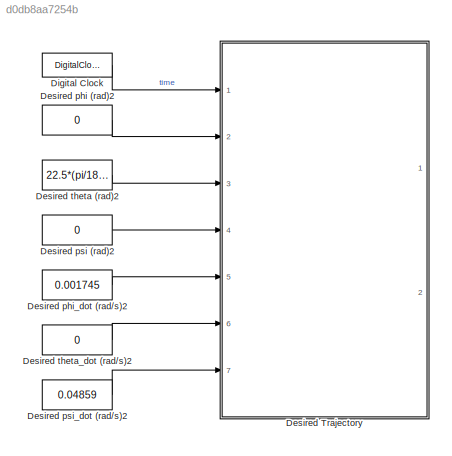
MODEL slx_d0db8aa7254b
KIND model
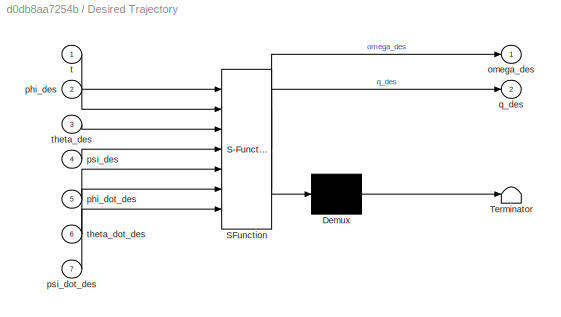
BLOCK [SubSystem] Desired Trajectory
  ErrorFcn = Stateflow.Translate.translate
  FunctionWithSeparateData = off
  MaskHideContents = off
  MinAlgLoopOccurrences = off
  Opaque = off
  PermitHierarchicalResolution = ExplicitOnly
  Ports = [7, 2]
  PropExecContextOutsideSubsystem = off
  RTWSystemCode = Auto
  RequestExecContextInheritance = off
  SFBlockType = MATLAB Function
  TreatAsAtomicUnit = on
BLOCK [Demux] Desired Trajectory/ Demux 
  Outputs = 1
  Ports = [1, 1]
BLOCK [S-Function] Desired Trajectory/ SFunction 
  EnableBusSupport = on
  FunctionName = sf_sfun
  PortCounts = [7 3]
  Ports = [7, 3]
  Tag = Stateflow S-Function trajectory_block 1
BLOCK [Terminator] Desired Trajectory/ Terminator 
BLOCK [Outport] Desired Trajectory/omega_des
  IconDisplay = Port number
BLOCK [Inport] Desired Trajectory/phi_des
  IconDisplay = Port number
  Port = 2
BLOCK [Inport] Desired Trajectory/phi_dot_des
  IconDisplay = Port number
  Port = 5
BLOCK [Inport] Desired Trajectory/psi_des
  IconDisplay = Port number
  Port = 4
BLOCK [Inport] Desired Trajectory/psi_dot_des
  IconDisplay = Port number
  Port = 7
BLOCK [Outport] Desired Trajectory/q_des
  IconDisplay = Port number
  Port = 2
BLOCK [Inport] Desired Trajectory/t
  IconDisplay = Port number
BLOCK [Inport] Desired Trajectory/theta_des
  IconDisplay = Port number
  Port = 3
BLOCK [Inport] Desired Trajectory/theta_dot_des
  IconDisplay = Port number
  Port = 6
BLOCK [Constant] Desired phi (rad)2
  Value = 0
BLOCK [Constant] Desired phi_dot (rad//s)2
  Value = 0.001745
BLOCK [Constant] Desired psi (rad)2
  Value = 0
BLOCK [Constant] Desired psi_dot (rad//s)2
  Value = 0.04859
BLOCK [Constant] Desired theta (rad)2
  Value = 22.5*(pi/180)
BLOCK [Constant] Desired theta_dot (rad//s)2
  Value = 0
BLOCK [DigitalClock] Digital Clock
  SampleTime = ts
LINE Desired phi (rad)2:1 -> Desired Trajectory:2
LINE Desired phi_dot (rad//s)2:1 -> Desired Trajectory:5
LINE Desired psi (rad)2:1 -> Desired Trajectory:4
LINE Desired psi_dot (rad//s)2:1 -> Desired Trajectory:7
LINE Desired theta (rad)2:1 -> Desired Trajectory:3
LINE Desired theta_dot (rad//s)2:1 -> Desired Trajectory:6
LINE Digital Clock:1 -> Desired Trajectory:1
